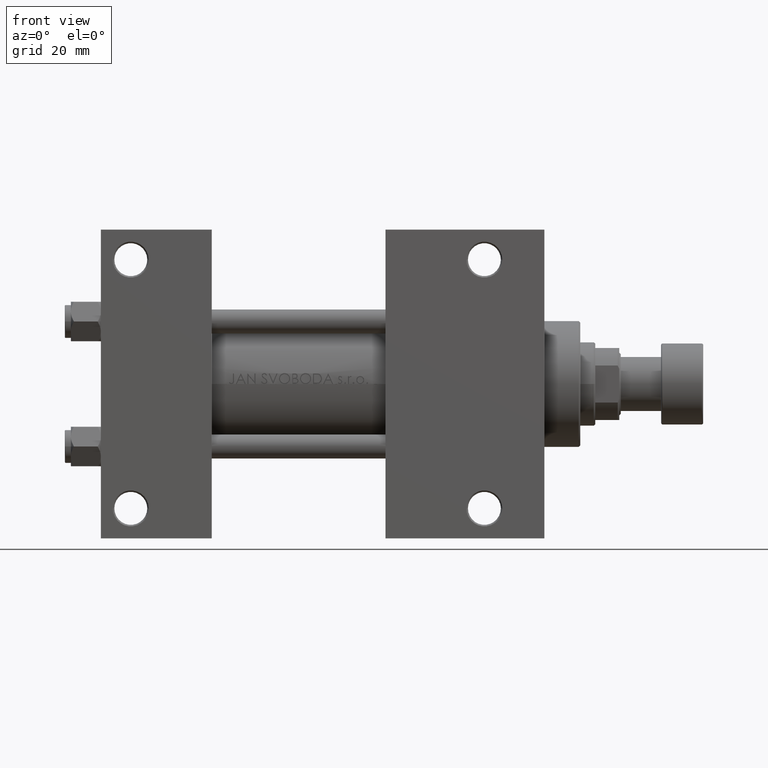
[diagram: clean part render]
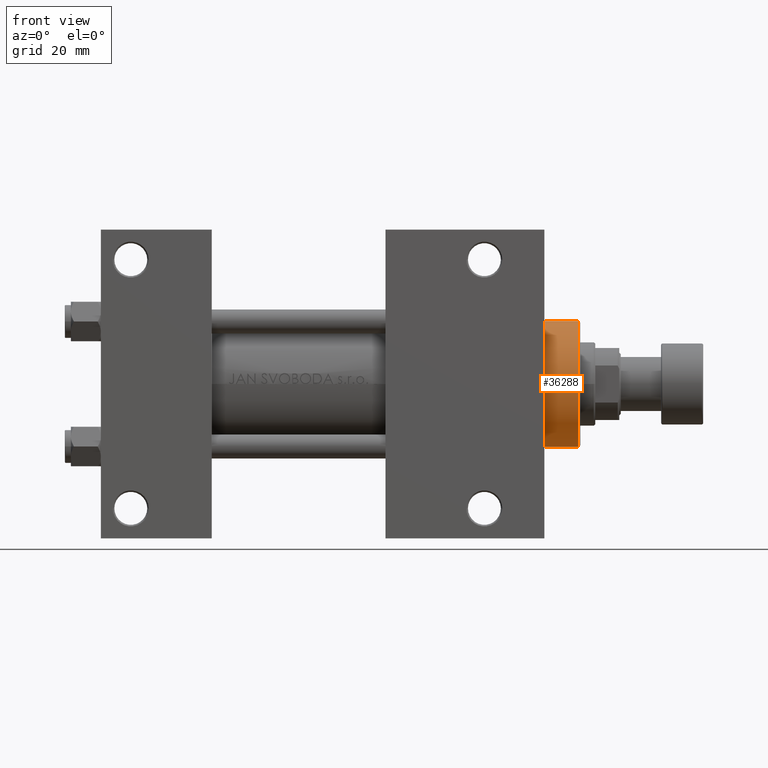
[diagram: same view with one face highlighted and labeled with its STEP entity id]
A machine part, front view. The second image highlights one B-rep face of the part: STEP entity #36288.
In plain terms, the highlighted cylindrical surface (partial cylindrical patch) has radius 21 mm, axis along (-1, -0, 0).
Its self-contained STEP definition (entity closure, byte-faithful):
#902 = VECTOR ( 'NONE', #15185, 1000.000000000000000 ) ;
#985 = CARTESIAN_POINT ( 'NONE',  ( -21.00000000000000000, 0.000000000000000000, 28.69999999999999929 ) ) ;
#1077 = ORIENTED_EDGE ( 'NONE', *, *, #20501, .F. ) ;
#1490 = EDGE_LOOP ( 'NONE', ( #1077, #38637, #32015, #30358 ) ) ;
#1836 = DIRECTION ( 'NONE',  ( -0.000000000000000000, -0.000000000000000000, -1.000000000000000000 ) ) ;
#2353 = LINE ( 'NONE', #3787, #19598 ) ;
#2553 = DIRECTION ( 'NONE',  ( -1.000000000000000000, 0.000000000000000000, 0.000000000000000000 ) ) ;
#2882 = AXIS2_PLACEMENT_3D ( 'NONE', #21399, #31877, #14336 ) ;
#3787 = CARTESIAN_POINT ( 'NONE',  ( -21.00000000000000000, 0.000000000000000000, 40.70000000000000284 ) ) ;
#6501 = DIRECTION ( 'NONE',  ( 0.000000000000000000, 0.000000000000000000, -1.000000000000000000 ) ) ;
#11433 = CIRCLE ( 'NONE', #2882, 21.00000000000000000 ) ;
#14236 = LINE ( 'NONE', #33666, #902 ) ;
#14336 = DIRECTION ( 'NONE',  ( 1.000000000000000000, 0.000000000000000000, 0.000000000000000000 ) ) ;
#15185 = DIRECTION ( 'NONE',  ( -0.000000000000000000, -0.000000000000000000, -1.000000000000000000 ) ) ;
#15959 = VERTEX_POINT ( 'NONE', #46819 ) ;
#18677 = CARTESIAN_POINT ( 'NONE',  ( 21.00000000000000000, 2.571758278209441661E-15, 40.19999999999998863 ) ) ;
#19598 = VECTOR ( 'NONE', #44379, 1000.000000000000000 ) ;
#20501 = EDGE_CURVE ( 'NONE', #29100, #15959, #14236, .T. ) ;
#21343 = DIRECTION ( 'NONE',  ( 1.000000000000000000, 0.000000000000000000, 0.000000000000000000 ) ) ;
#21399 = CARTESIAN_POINT ( 'NONE',  ( 0.000000000000000000, 0.000000000000000000, 28.69999999999999929 ) ) ;
#22053 = EDGE_CURVE ( 'NONE', #23531, #46440, #2353, .T. ) ;
#22290 = AXIS2_PLACEMENT_3D ( 'NONE', #28876, #6501, #21343 ) ;
#23531 = VERTEX_POINT ( 'NONE', #31290 ) ;
#28343 = FACE_OUTER_BOUND ( 'NONE', #1490, .T. ) ;
#28876 = CARTESIAN_POINT ( 'NONE',  ( 0.000000000000000000, 0.000000000000000000, 40.19999999999998863 ) ) ;
#29100 = VERTEX_POINT ( 'NONE', #18677 ) ;
#30358 = ORIENTED_EDGE ( 'NONE', *, *, #46712, .T. ) ;
#31290 = CARTESIAN_POINT ( 'NONE',  ( -21.00000000000000000, 0.000000000000000000, 40.19999999999998863 ) ) ;
#31635 = AXIS2_PLACEMENT_3D ( 'NONE', #31759, #1836, #2553 ) ;
#31759 = CARTESIAN_POINT ( 'NONE',  ( 0.000000000000000000, 0.000000000000000000, 40.70000000000000284 ) ) ;
#31877 = DIRECTION ( 'NONE',  ( 0.000000000000000000, 0.000000000000000000, 1.000000000000000000 ) ) ;
#32015 = ORIENTED_EDGE ( 'NONE', *, *, #22053, .T. ) ;
#33666 = CARTESIAN_POINT ( 'NONE',  ( 21.00000000000000000, 2.571758278209441661E-15, 40.70000000000000284 ) ) ;
#36288 = ADVANCED_FACE ( 'NONE', ( #28343 ), #42431, .T. ) ;
#38637 = ORIENTED_EDGE ( 'NONE', *, *, #47482, .T. ) ;
#42431 = CYLINDRICAL_SURFACE ( 'NONE', #31635, 21.00000000000000000 ) ;
#43249 = CIRCLE ( 'NONE', #22290, 21.00000000000000000 ) ;
#44379 = DIRECTION ( 'NONE',  ( -0.000000000000000000, -0.000000000000000000, -1.000000000000000000 ) ) ;
#46440 = VERTEX_POINT ( 'NONE', #985 ) ;
#46712 = EDGE_CURVE ( 'NONE', #46440, #15959, #11433, .T. ) ;
#46819 = CARTESIAN_POINT ( 'NONE',  ( 21.00000000000000000, 2.571758278209441661E-15, 28.69999999999999929 ) ) ;
#47482 = EDGE_CURVE ( 'NONE', #29100, #23531, #43249, .T. ) ;